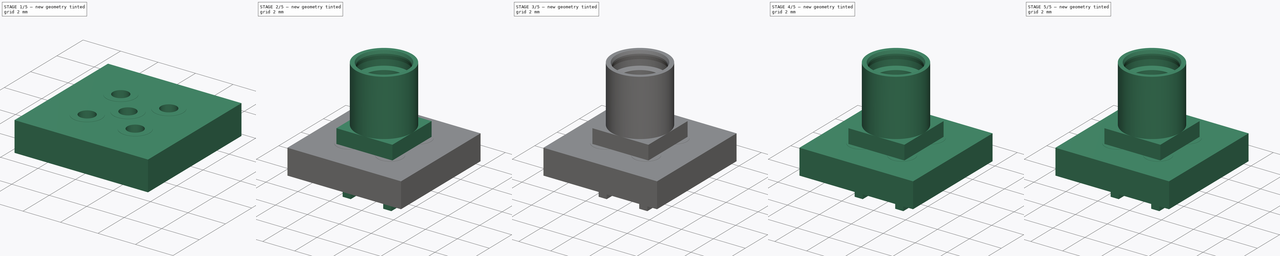
[diagram: build sequence overview — one tinted view per stage of 5, left to right]
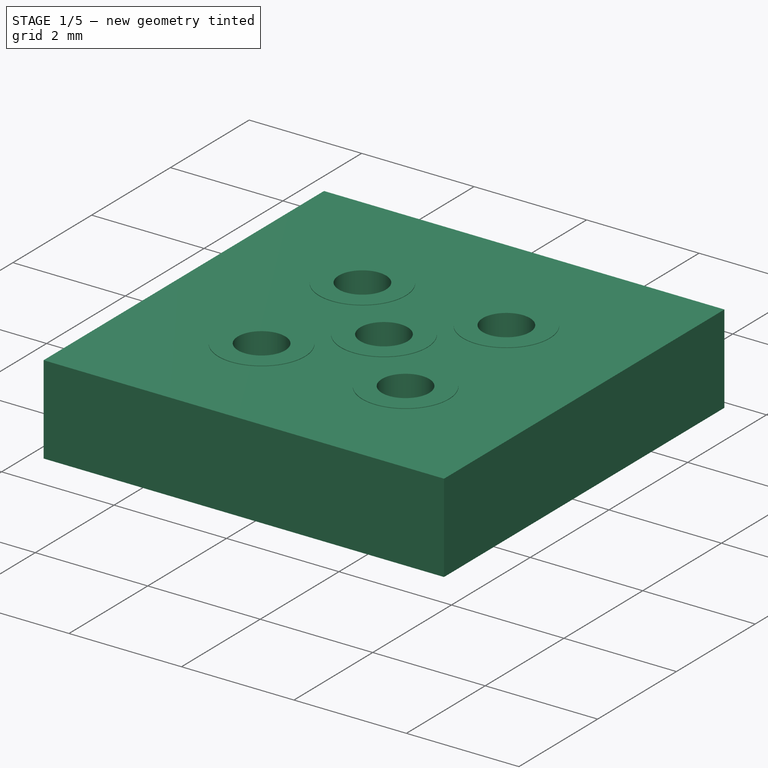
[diagram: stage 1 of 5 — iso view after this stage's code; geometry added in this stage tinted green]
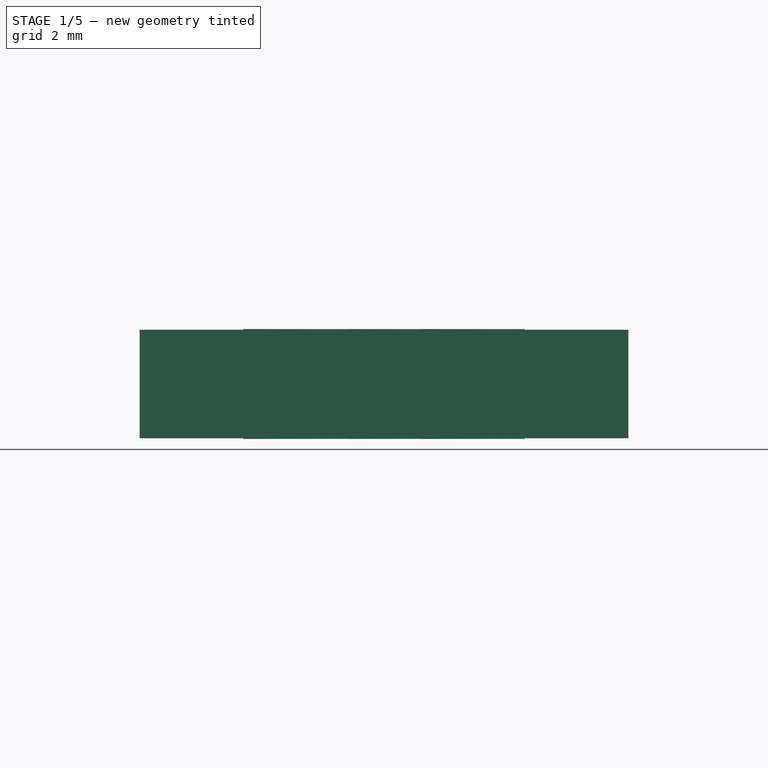
[diagram: stage 1 of 5 — front view after this stage's code; geometry added in this stage tinted green]
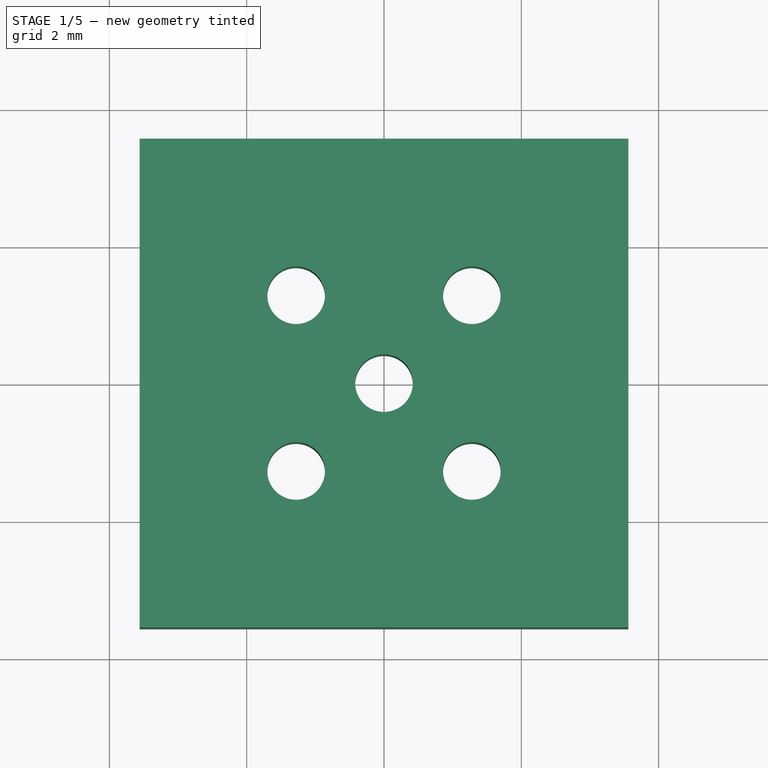
[diagram: stage 1 of 5 — top view after this stage's code; geometry added in this stage tinted green]
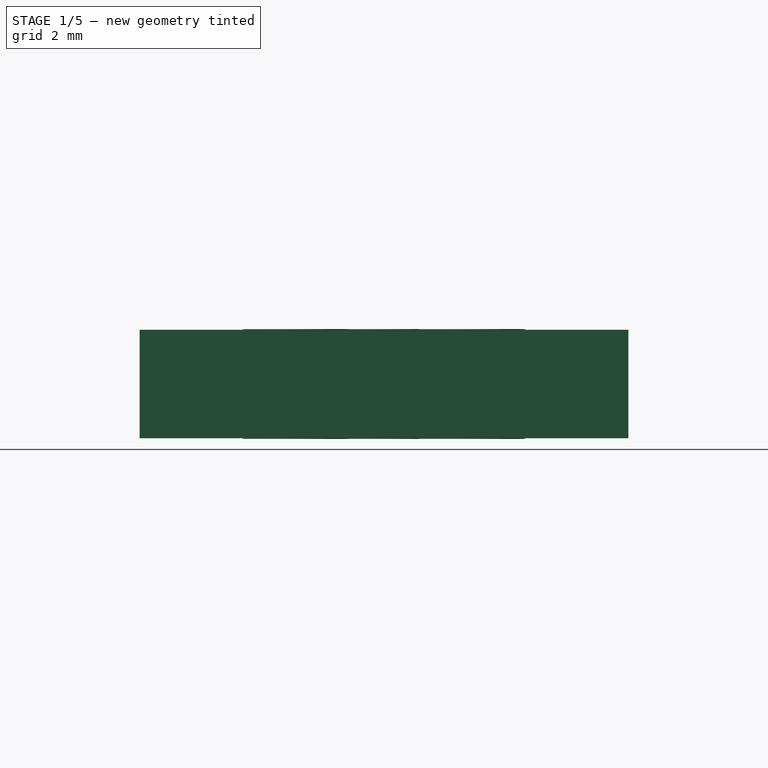
[diagram: stage 1 of 5 — right view after this stage's code; geometry added in this stage tinted green]
FCSTD DOCUMENT  (FreeCAD 0.17R13519 (Git))
Label: MMCX_Molex_73415-1471_Vertical
License: All rights reserved
LicenseURL: http://en.wikipedia.org/wiki/All_rights_reserved
objects: Part::FeaturePython×14, Sketcher::SketchObject×7, PartDesign::Pad×5, Part::Feature×3, App::DocumentObjectGroup×2, PartDesign::Body×2, PartDesign::Revolution×1, PartDesign::Pocket×1, PartDesign::PolarPattern×1, PartDesign::Chamfer×1, App::Part×1, Part::Compound×1, Part::MultiFuse×1
note: 44 computed .brp shape members not serialized (recipe doc carries the construction recipe); baked Part::Feature solids carry a one-line shape summary decoded from their .brp

FEATURE [Part::Feature] Shape  label="MMCX_Molex_73415-1471_Vertical"
  shape: bbox 3.51 x 3.51 x 7.44 mm, 58 faces (baked)
FEATURE [Part::FeaturePython] FCrtYd_lines001  label="FCrtYd001"  # a2plus imported part (geometry in sourceFile) (typed FeaturePython)
  fixedPosition = true
FEATURE [Part::FeaturePython] FFab_lines001  label="FFab001"  # a2plus imported part (geometry in sourceFile) (typed FeaturePython)
  fixedPosition = true
FEATURE [Part::FeaturePython] Filk_lines001  label="FrontSilk001"  # a2plus imported part (geometry in sourceFile) (typed FeaturePython)
  fixedPosition = true
FEATURE [Part::FeaturePython] TopPads001  # a2plus imported part (geometry in sourceFile) (typed FeaturePython)
  fixedPosition = true
FEATURE [Part::FeaturePython] BotPads001  # a2plus imported part (geometry in sourceFile) (typed FeaturePython)
  fixedPosition = true
FEATURE [Part::FeaturePython] THPs001  label="PTHs001"  # a2plus imported part (geometry in sourceFile) (typed FeaturePython)
  fixedPosition = true
FEATURE [Part::FeaturePython] newPCB001  label="Pcb001"  # a2plus imported part (geometry in sourceFile) (typed FeaturePython)
  fixedPosition = true
FEATURE [App::DocumentObjectGroup] MMCX_Molex_73415_1471_Vertical_fp
  Group = -> [FCrtYd_lines001,FFab_lines001,Filk_lines001,TopPads001,BotPads001,THPs001,newPCB001]
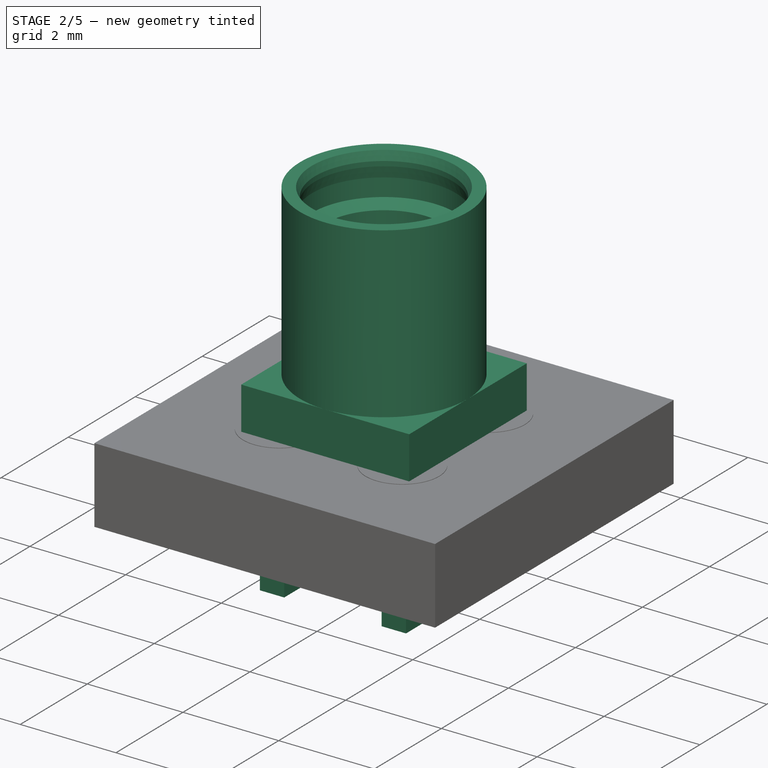
[diagram: stage 2 of 5 — iso view after this stage's code; geometry added in this stage tinted green]
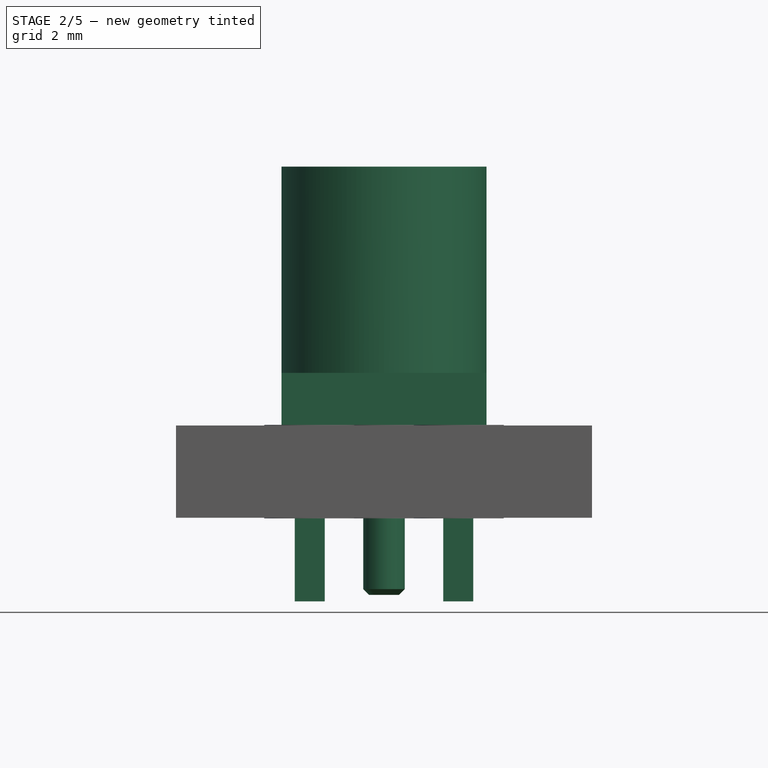
[diagram: stage 2 of 5 — front view after this stage's code; geometry added in this stage tinted green]
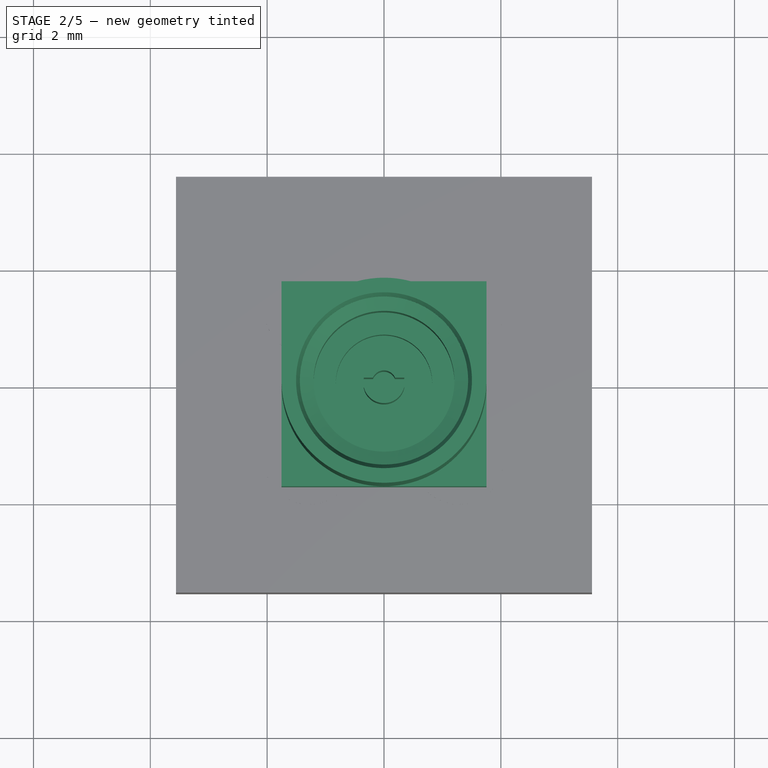
[diagram: stage 2 of 5 — top view after this stage's code; geometry added in this stage tinted green]
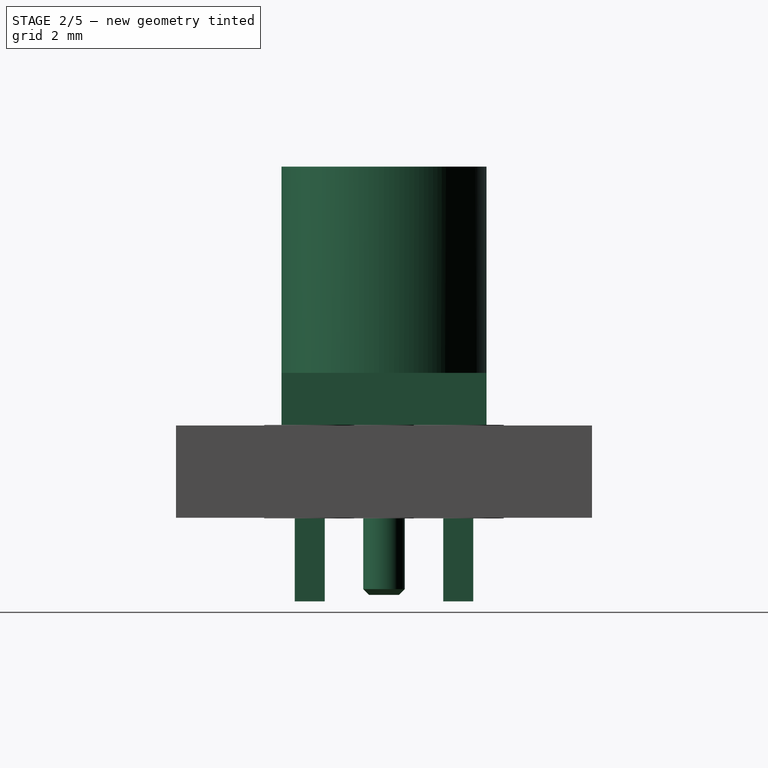
[diagram: stage 2 of 5 — right view after this stage's code; geometry added in this stage tinted green]
FEATURE [App::DocumentObjectGroup] MMCX_fp
  Group = -> [FCrtYd_lines,FFab_lines,Filk_lines,TopPads,BotPads,THPs,newPCB]
FEATURE [Sketcher::SketchObject] Sketch
  MapMode = 5
  Support = -> [XY_Plane]
  sketch-geometry (4):
    g0: LineSegment StartX=-1.755 StartY=1.755 StartZ=0 EndX=1.755 EndY=1.755 EndZ=0
    g1: LineSegment StartX=1.755 StartY=1.755 StartZ=0 EndX=1.755 EndY=-1.755 EndZ=0
    g2: LineSegment StartX=1.755 StartY=-1.755 StartZ=0 EndX=-1.755 EndY=-1.755 EndZ=0
    g3: LineSegment StartX=-1.755 StartY=-1.755 StartZ=0 EndX=-1.755 EndY=1.755 EndZ=0
  constraints (12):
    c: Coincident(g0,g1)
    c: Coincident(g1,g2)
    c: Coincident(g2,g3)
    c: Coincident(g3,g0)
    c: Horizontal(g0)
    c: Horizontal(g2)
    c: Vertical(g1)
    c: Vertical(g3)
    c: DistanceX(g0,g0) = 3.51
    c: DistanceY(g1,g1) = 3.51
    c: Symmetric(g0,g0,g-2)
    c: Symmetric(g1,g0,g-1)
FEATURE [PartDesign::Pad] Pad
  Length = 0.89
  Length2 = 100
  Profile = -> Sketch
  Type = 0
FEATURE [Sketcher::SketchObject] Sketch001
  MapMode = 5
  Placement = pos=(0,0,0) rot=(1,0,0;1.5708rad)
  Support = -> [XZ_Plane]
  sketch-geometry (11):
    g0: LineSegment StartX=1.755 StartY=0.89 StartZ=0 EndX=0.825 EndY=0.89 EndZ=0
    g1: LineSegment StartX=1.755 StartY=0.89 StartZ=0 EndX=1.755 EndY=4.42 EndZ=0
    g2: LineSegment StartX=1.755 StartY=4.42 StartZ=0 EndX=1.505 EndY=4.42 EndZ=0
    g3: LineSegment StartX=1.505 StartY=4.42 StartZ=0 EndX=1.44 EndY=4.24 EndZ=0
    g4: LineSegment StartX=1.44 StartY=4.24 StartZ=0 EndX=1.44 EndY=4.14 EndZ=0
    g5: LineSegment StartX=1.44 StartY=4.14 StartZ=0 EndX=1.505 EndY=3.9 EndZ=0
    g6: LineSegment StartX=1.505 StartY=3.9 StartZ=0 EndX=1.505 EndY=3.53 EndZ=0
    g7: LineSegment StartX=1.505 StartY=3.53 StartZ=0 EndX=1.205 EndY=3.42 EndZ=0
    g8: LineSegment StartX=1.205 StartY=3.42 StartZ=0 EndX=1.205 EndY=1.82 EndZ=0
    g9: LineSegment StartX=1.205 StartY=1.82 StartZ=0 EndX=0.825 EndY=1.82 EndZ=0
    g10: LineSegment StartX=0.825 StartY=1.82 StartZ=0 EndX=0.825 EndY=0.89 EndZ=0
  constraints (33):
    c: Horizontal(g0)
    c: Coincident(g1,g0)
    c: Vertical(g1)
    c: DistanceX(g-1,g0) = 1.755
    c: DistanceY(g-1,g0) = 0.89
    c: DistanceY(g1,g1) = 3.53
    c: Coincident(g2,g1)
    c: Horizontal(g2)
    c: DistanceX(g2,g2) = 0.25
    c: Coincident(g3,g2)
    c: DistanceX(g3,g2) = 0.065
    c: DistanceY(g3,g2) = 0.18
    c: Coincident(g4,g3)
    c: Vertical(g4)
    c: DistanceY(g4,g4) = 0.1
    c: Coincident(g5,g4)
    c: DistanceX(g4,g5) = 0.065
    c: DistanceY(g5,g4) = 0.24
    c: Coincident(g6,g5)
    c: Vertical(g6)
    c: DistanceY(g6,g6) = 0.37
    c: Coincident(g7,g6)
    c: DistanceX(g7,g6) = 0.3
    c: DistanceY(g7,g6) = 0.11
    c: Coincident(g8,g7)
    c: Vertical(g8)
    c: DistanceY(g8,g8) = 1.6
    c: Coincident(g9,g8)
    c: Horizontal(g9)
    c: DistanceX(g9,g9) = 0.38
    c: Coincident(g10,g9)
    c: Vertical(g10)
    c: Coincident(g10,g0)
FEATURE [PartDesign::Revolution] Revolution
  Angle = 360
  Axis = (0,0,1)
  Base = (0,0,0)
  BaseFeature = -> Pad
  Profile = -> Sketch001
  ReferenceAxis = -> Sketch001 [V_Axis]
  Reversed = true
FEATURE [PartDesign::Body] Body  label="Shell"
  Group = -> [Sketch,Pad,Sketch001,Revolution,Sketch002,Sketch003,Pad002,Sketch004,Pad003,Sketch005,Pocket,Pad005,PolarPattern,Chamfer]
  Origin = -> Origin
  Tip = -> Chamfer
FEATURE [App::Part] Part  label="MMCX_Molex_73415-1471_Vertical_Source"
  Group = -> [Body,Body001]
  License = CC BY 3.0
  LicenseURL = http://creativecommons.org/licenses/by/3.0/
  Origin = -> Origin002
FEATURE [Part::Feature] Chamfer_cp
  shape: bbox 3.51 x 3.51 x 7.44 mm, 56 faces (baked)
FEATURE [Part::Feature] Pad004_cp
  shape: bbox 2.54 x 2.54 x 0.1 mm, 4 faces (baked)
FEATURE [Part::Compound] MMCX_Molex_73415_1471_Vertical_cp
  Links = -> [Chamfer_cp,Pad004_cp]
FEATURE [Part::MultiFuse] MMCX_Molex_73415_1471_Vertical_mp_cp  label="MMCX_Molex_73415-1471_Vertical_fd"
  Shapes = -> [MMCX_Molex_73415_1471_Vertical_cp]
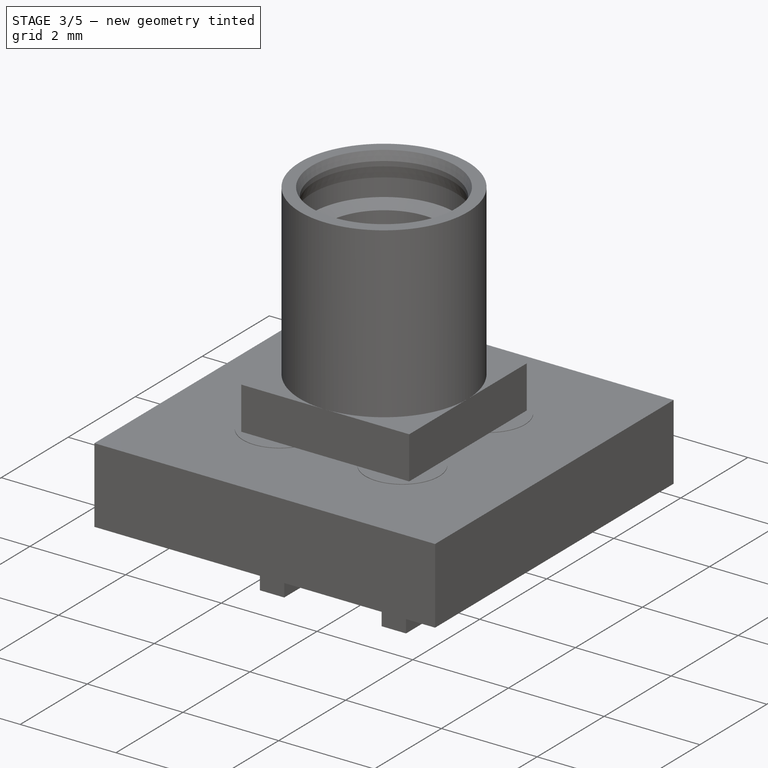
[diagram: stage 3 of 5 — iso view after this stage's code; geometry added in this stage tinted green]
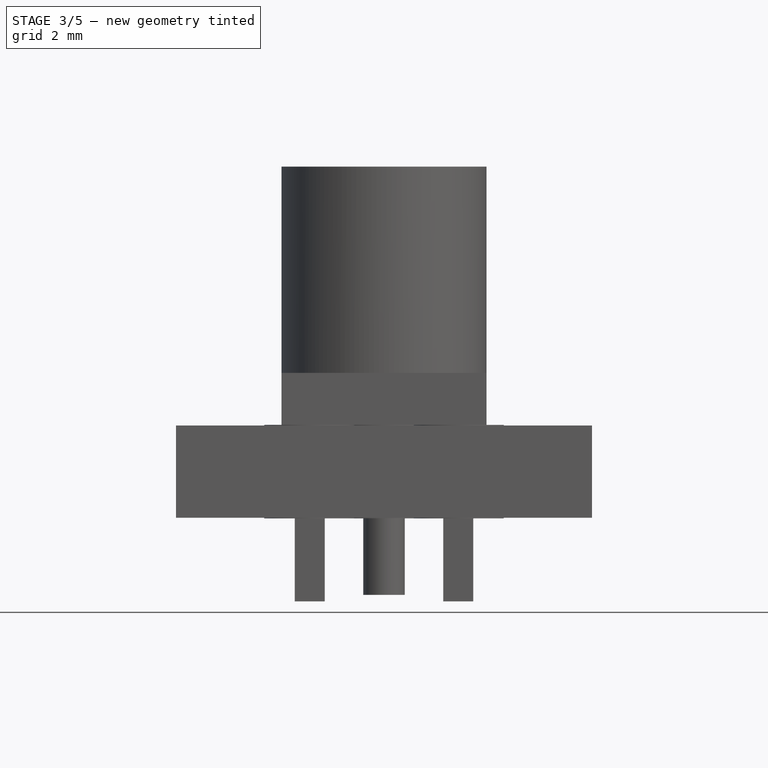
[diagram: stage 3 of 5 — front view after this stage's code; geometry added in this stage tinted green]
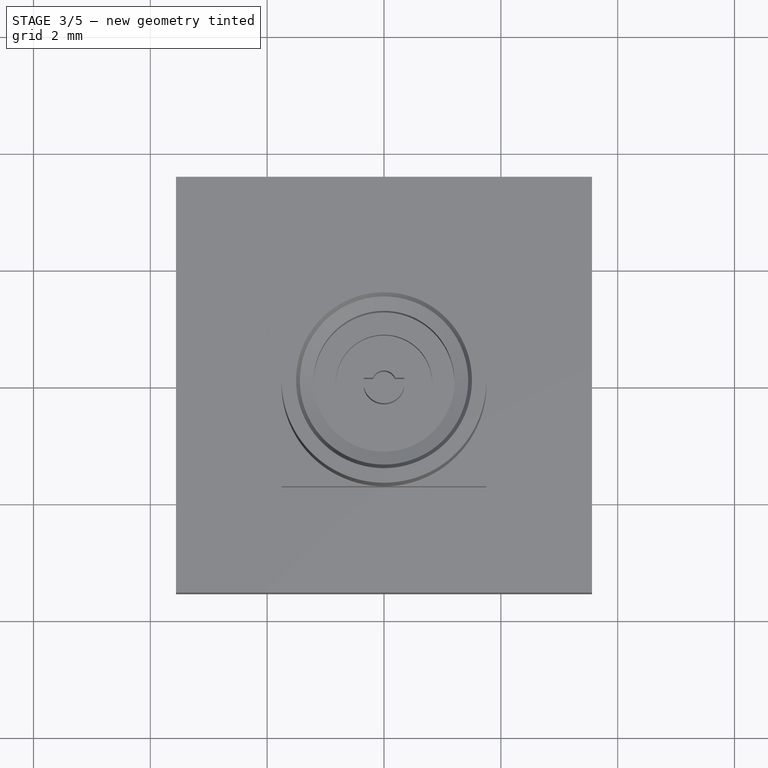
[diagram: stage 3 of 5 — top view after this stage's code; geometry added in this stage tinted green]
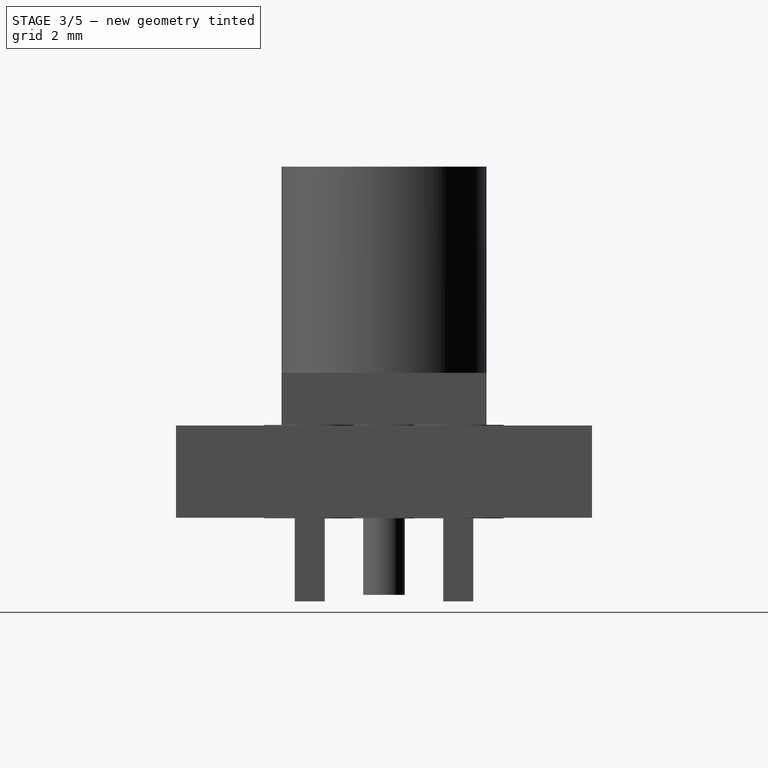
[diagram: stage 3 of 5 — right view after this stage's code; geometry added in this stage tinted green]
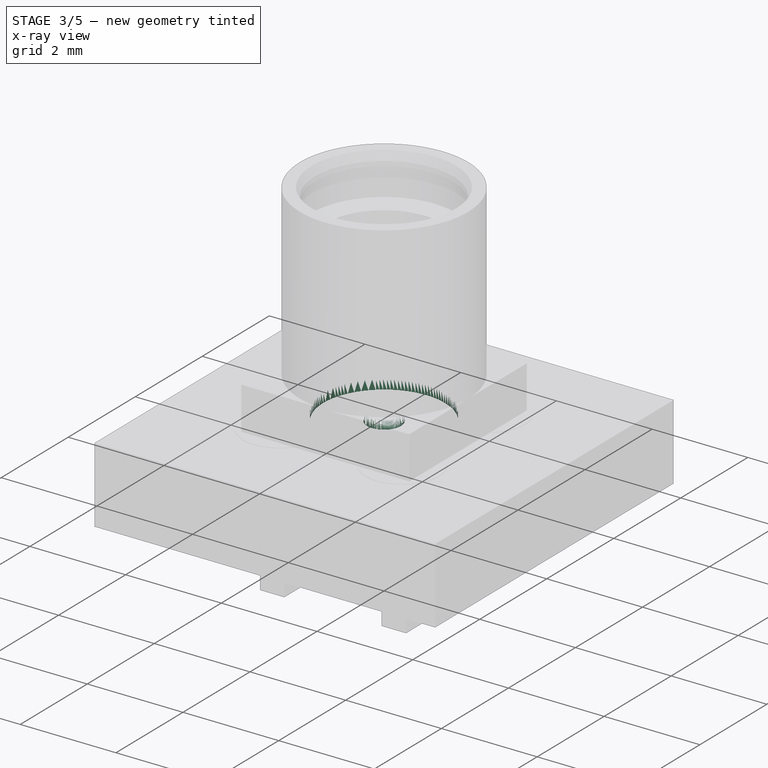
[diagram: stage 3 of 5 — x-ray composite at the iso view; earlier geometry ghosted, this stage's added geometry solid]
FEATURE [Sketcher::SketchObject] Sketch002
  MapMode = 5
  Placement = pos=(0,0,0) rot=(1,0,0;3.14159rad)
  Support = -> [Revolution]
  sketch-geometry (6):
    g0: LineSegment StartX=-1.525 StartY=1.528 StartZ=0 EndX=-1.015 EndY=1.528 EndZ=0
    g1: LineSegment StartX=-1.015 StartY=1.528 StartZ=0 EndX=-1.015 EndY=1.018 EndZ=0
    g2: LineSegment StartX=-1.015 StartY=1.018 StartZ=0 EndX=-1.525 EndY=1.018 EndZ=0
    g3: LineSegment StartX=-1.525 StartY=1.018 StartZ=0 EndX=-1.525 EndY=1.528 EndZ=0
    g4: GeomPoint X=-1.27 Y=1.528 Z=0
    g5: GeomPoint X=-1.525 Y=1.273 Z=0
  constraints (16):
    c: Coincident(g0,g1)
    c: Coincident(g1,g2)
    c: Coincident(g2,g3)
    c: Coincident(g3,g0)
    c: Horizontal(g0)
    c: Horizontal(g2)
    c: Vertical(g1)
    c: Vertical(g3)
    c: DistanceX(g0,g0) = 0.51
    c: DistanceY(g1,g1) = 0.51
    c: PointOnObject(g4,g0)
    c: PointOnObject(g5,g3)
    c: Symmetric(g0,g0,g4)
    c: Symmetric(g0,g2,g5)
    c: DistanceX(g4,g-1) = 1.27
    c: DistanceY(g5) = 1.273
FEATURE [Sketcher::SketchObject] Sketch003
  MapMode = 5
  Placement = pos=(0,0,0) rot=(1,0,0;3.14159rad)
  sketch-geometry (1):
    g0: Circle CenterX=0 CenterY=0 CenterZ=0 NormalX=0 NormalY=0 NormalZ=1 AngleXU=0 Radius=0.355
  constraints (2):
    c: Coincident(g0,g-1)
    c: Radius(g0) = 0.355
FEATURE [PartDesign::Pad] Pad002
  BaseFeature = -> Revolution
  Length = 2.91
  Length2 = 100
  Profile = -> Sketch003
  Type = 0
FEATURE [Sketcher::SketchObject] Sketch004
  MapMode = 5
  Placement = pos=(0,0,0.89) rot=(0,0,1;0rad)
  sketch-geometry (12):
    g0: ArcOfCircle CenterX=0 CenterY=0 CenterZ=0 NormalX=0 NormalY=0 NormalZ=1 AngleXU=0 Radius=0.205 StartAngle=0.400896 EndAngle=2.7407
    g1: ArcOfCircle CenterX=0 CenterY=0 CenterZ=0 NormalX=0 NormalY=0 NormalZ=1 AngleXU=0 Radius=0.355 StartAngle=0.227304 EndAngle=2.91429
    g2: LineSegment [constr] StartX=0.345868 StartY=0.08 StartZ=0 EndX=0.345868 EndY=0 EndZ=0
    g3: LineSegment [constr] StartX=-0.345868 StartY=0.08 StartZ=0 EndX=-0.345868 EndY=0 EndZ=0
    g4: LineSegment StartX=-0.345868 StartY=0.08 StartZ=0 EndX=-0.188746 EndY=0.08 EndZ=0
    g5: LineSegment StartX=0.188746 StartY=0.08 StartZ=0 EndX=0.345868 EndY=0.08 EndZ=0
    g6: ArcOfCircle CenterX=0 CenterY=0 CenterZ=0 NormalX=0 NormalY=0 NormalZ=1 AngleXU=0 Radius=0.205 StartAngle=3.54249 EndAngle=5.88229
    g7: ArcOfCircle CenterX=0 CenterY=0 CenterZ=0 NormalX=0 NormalY=0 NormalZ=1 AngleXU=0 Radius=0.355 StartAngle=3.3689 EndAngle=6.05588
    g8: LineSegment StartX=-0.345868 StartY=-0.08 StartZ=0 EndX=-0.188746 EndY=-0.08 EndZ=0
    g9: LineSegment StartX=0.188746 StartY=-0.08 StartZ=0 EndX=0.345868 EndY=-0.08 EndZ=0
    g10: LineSegment [constr] StartX=0.345868 StartY=-0.08 StartZ=0 EndX=0.345868 EndY=0 EndZ=0
    g11: LineSegment [constr] StartX=-0.345868 StartY=-0.08 StartZ=0 EndX=-0.345868 EndY=0 EndZ=0
  constraints (35):
    c: Coincident(g0,g-1)
    c: Coincident(g1,g-1)
    c: Radius(g1) = 0.355
    c: Radius(g0) = 0.205
    c: Coincident(g2,g1)
    c: PointOnObject(g2,g-1)
    c: Vertical(g2)
    c: Coincident(g3,g1)
    c: PointOnObject(g3,g-1)
    c: Vertical(g3)
    c: DistanceY(g2,g2) = 0.08
    c: DistanceY(g3,g3) = 0.08
    c: Coincident(g4,g1)
    c: Coincident(g4,g0)
    c: Horizontal(g4)
    c: Coincident(g5,g0)
    c: Coincident(g5,g1)
    c: Horizontal(g5)
    c: Coincident(g6,g-1)
    c: Coincident(g7,g-1)
    c: Radius(g6) = 0.205
    c: Radius(g7) = 0.355
    c: Coincident(g8,g7)
    c: Coincident(g8,g6)
    c: Coincident(g9,g6)
    c: Coincident(g9,g7)
    c: Horizontal(g8)
    c: Horizontal(g9)
    c: Coincident(g10,g7)
    c: PointOnObject(g10,g-1)
    c: Vertical(g10)
    c: Coincident(g11,g7)
    c: Coincident(g11,g3)
    c: Vertical(g11)
    c: DistanceY(g10,g10) = 0.08
FEATURE [PartDesign::Pad] Pad003
  BaseFeature = -> Pad002
  Length = 1.46
  Length2 = 100
  Profile = -> Sketch004
  Type = 0
FEATURE [Sketcher::SketchObject] Sketch005
  MapMode = 5
  Placement = pos=(0,0,0) rot=(1,0,0;3.14159rad)
  Support = -> [Pad003]
  sketch-geometry (2):
    g0: Circle CenterX=0 CenterY=0 CenterZ=0 NormalX=0 NormalY=0 NormalZ=1 AngleXU=0 Radius=1.27
    g1: Circle CenterX=0 CenterY=0 CenterZ=0 NormalX=0 NormalY=0 NormalZ=1 AngleXU=0 Radius=0.355
  constraints (4):
    c: Coincident(g0,g-1)
    c: Radius(g0) = 1.27
    c: Coincident(g1,g-1)
    c: Radius(g1) = 0.355
FEATURE [PartDesign::Pocket] Pocket
  BaseFeature = -> Pad003
  Length = 0.2
  Length2 = 100
  Profile = -> Sketch005
  Type = 0
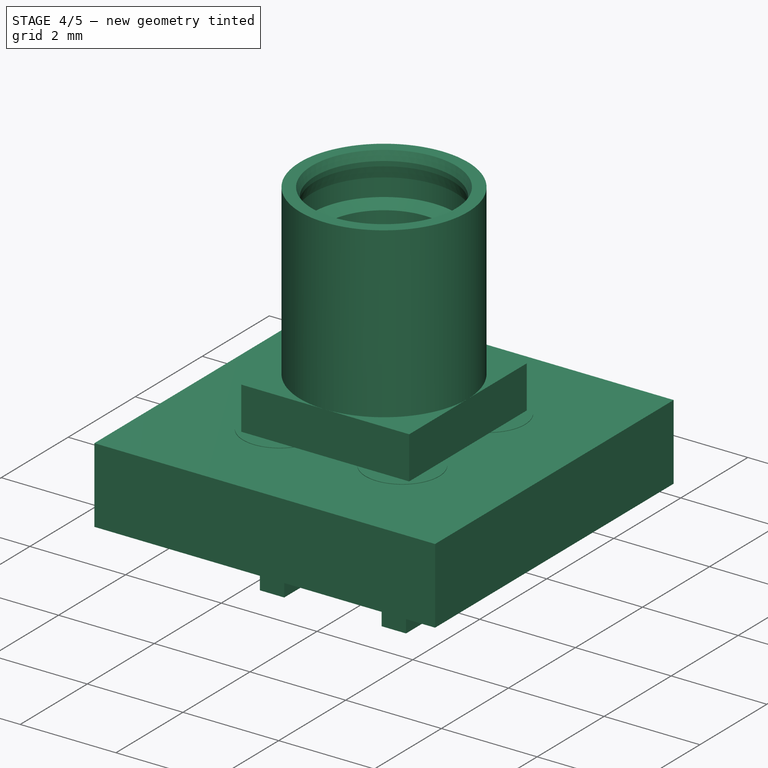
[diagram: stage 4 of 5 — iso view after this stage's code; geometry added in this stage tinted green]
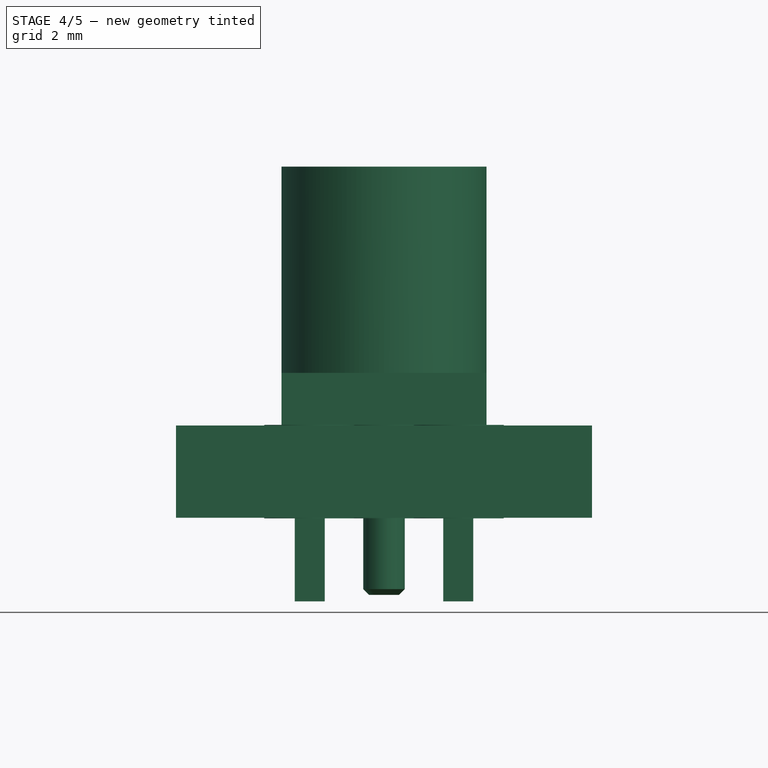
[diagram: stage 4 of 5 — front view after this stage's code; geometry added in this stage tinted green]
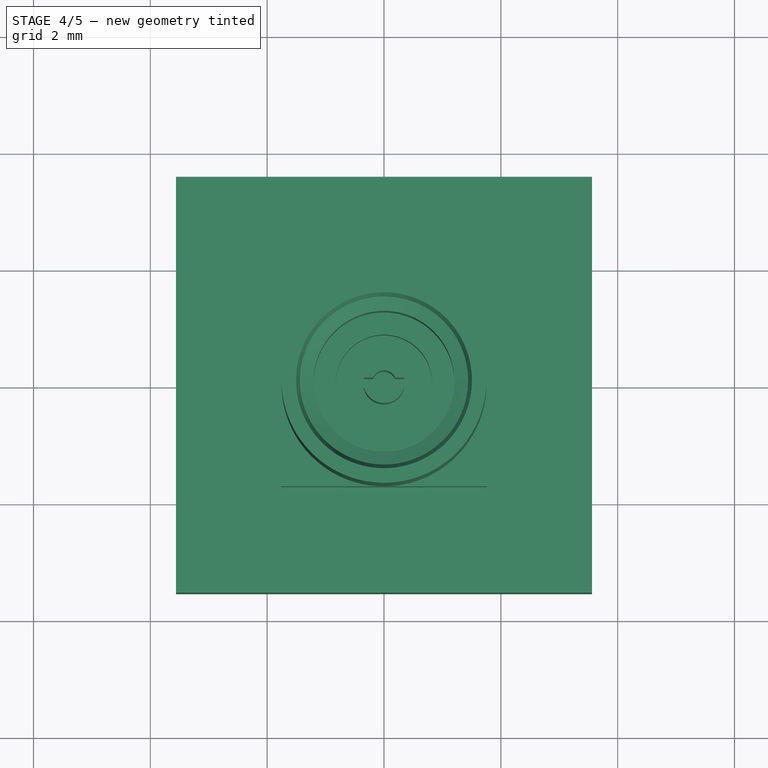
[diagram: stage 4 of 5 — top view after this stage's code; geometry added in this stage tinted green]
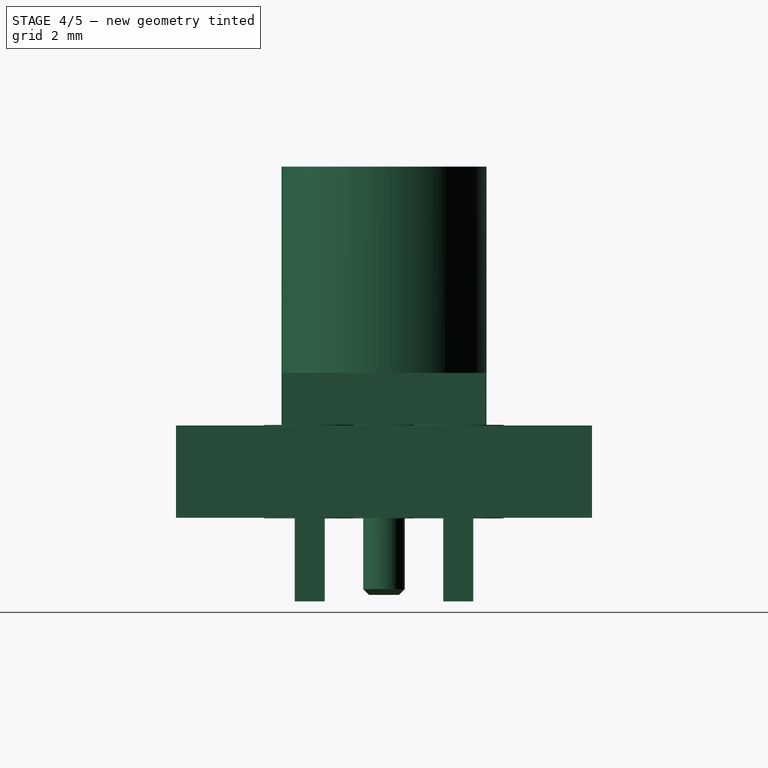
[diagram: stage 4 of 5 — right view after this stage's code; geometry added in this stage tinted green]
FEATURE [Sketcher::SketchObject] Sketch006
  MapMode = 5
  Support = -> [XY_Plane001]
  sketch-geometry (2):
    g0: Circle CenterX=0 CenterY=0 CenterZ=0 NormalX=0 NormalY=0 NormalZ=1 AngleXU=0 Radius=1.27
    g1: Circle CenterX=0 CenterY=0 CenterZ=0 NormalX=0 NormalY=0 NormalZ=1 AngleXU=0 Radius=0.355
  constraints (4):
    c: Radius(g0) = 1.27
    c: Coincident(g0,g-1)
    c: Coincident(g1,g-1)
    c: Radius(g1) = 0.355
FEATURE [PartDesign::Pad] Pad004
  Length = 0.1
  Length2 = 100
  Profile = -> Sketch006
  Type = 0
FEATURE [PartDesign::Body] Body001  label="Plastic"
  Group = -> [Sketch006,Pad004]
  Origin = -> Origin001
  Tip = -> Pad004
FEATURE [PartDesign::Pad] Pad005
  BaseFeature = -> Pocket
  Length = 3.02
  Length2 = 100
  Profile = -> Sketch002
  Type = 0
FEATURE [PartDesign::PolarPattern] PolarPattern
  Angle = 360
  Axis = -> Sketch002 [N_Axis]
  BaseFeature = -> Pad005
  Occurrences = 4
  Originals = -> [Pad005]
FEATURE [PartDesign::Chamfer] Chamfer
  Base = -> PolarPattern [Edge81]
  BaseFeature = -> PolarPattern
  Size = 0.1
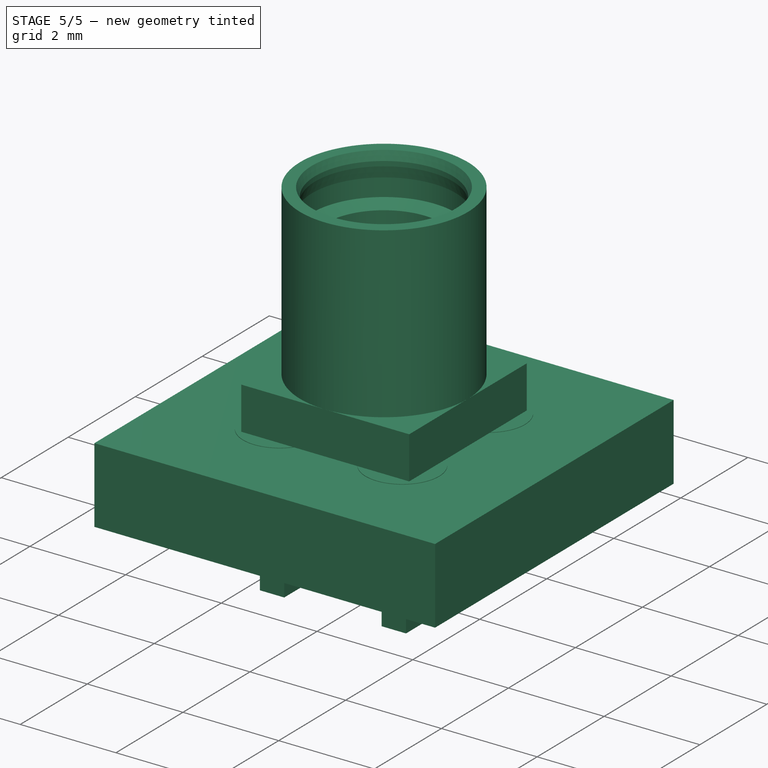
[diagram: stage 5 of 5 — iso view after this stage's code; geometry added in this stage tinted green]
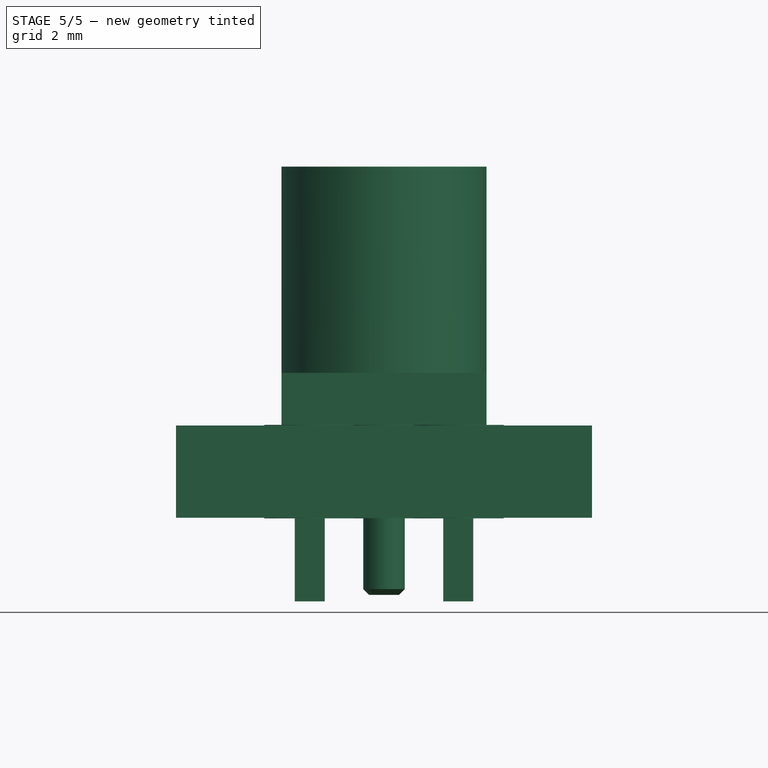
[diagram: stage 5 of 5 — front view after this stage's code; geometry added in this stage tinted green]
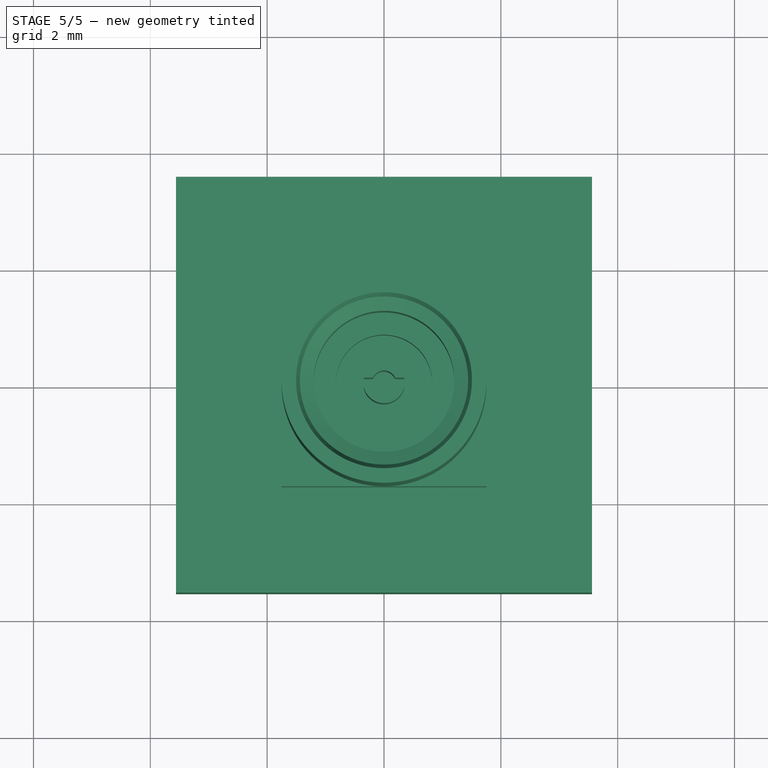
[diagram: stage 5 of 5 — top view after this stage's code; geometry added in this stage tinted green]
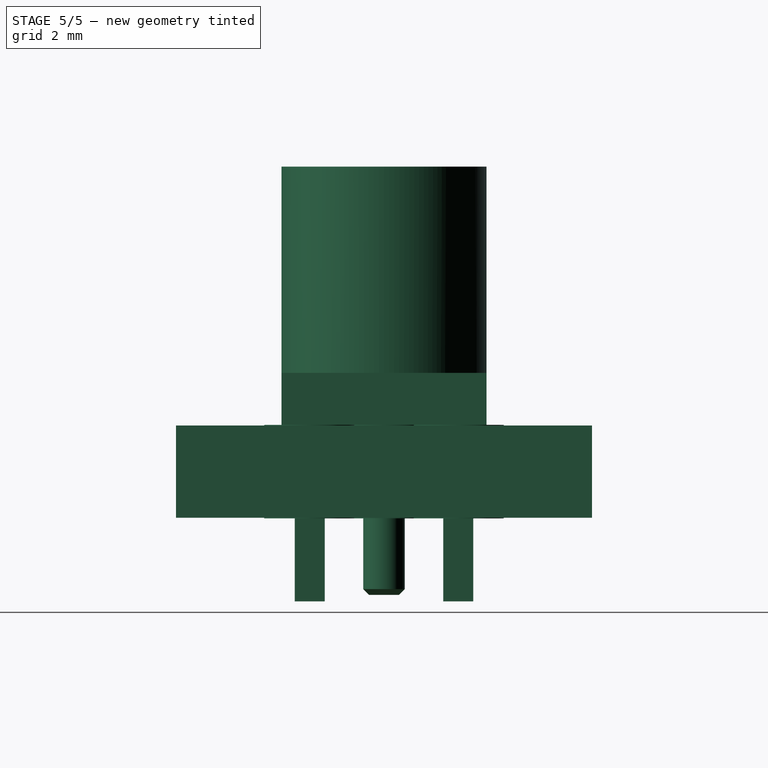
[diagram: stage 5 of 5 — right view after this stage's code; geometry added in this stage tinted green]
FEATURE [Part::FeaturePython] FCrtYd_lines  label="FCrtYd"  # a2plus imported part (geometry in sourceFile) (typed FeaturePython)
  fixedPosition = true
FEATURE [Part::FeaturePython] FFab_lines  label="FFab"  # a2plus imported part (geometry in sourceFile) (typed FeaturePython)
  fixedPosition = true
FEATURE [Part::FeaturePython] Filk_lines  label="FrontSilk"  # a2plus imported part (geometry in sourceFile) (typed FeaturePython)
  fixedPosition = true
FEATURE [Part::FeaturePython] TopPads  # a2plus imported part (geometry in sourceFile) (typed FeaturePython)
  fixedPosition = true
FEATURE [Part::FeaturePython] BotPads  # a2plus imported part (geometry in sourceFile) (typed FeaturePython)
  fixedPosition = true
FEATURE [Part::FeaturePython] THPs  label="PTHs"  # a2plus imported part (geometry in sourceFile) (typed FeaturePython)
  fixedPosition = true
FEATURE [Part::FeaturePython] newPCB  label="Pcb"  # a2plus imported part (geometry in sourceFile) (typed FeaturePython)
  fixedPosition = true
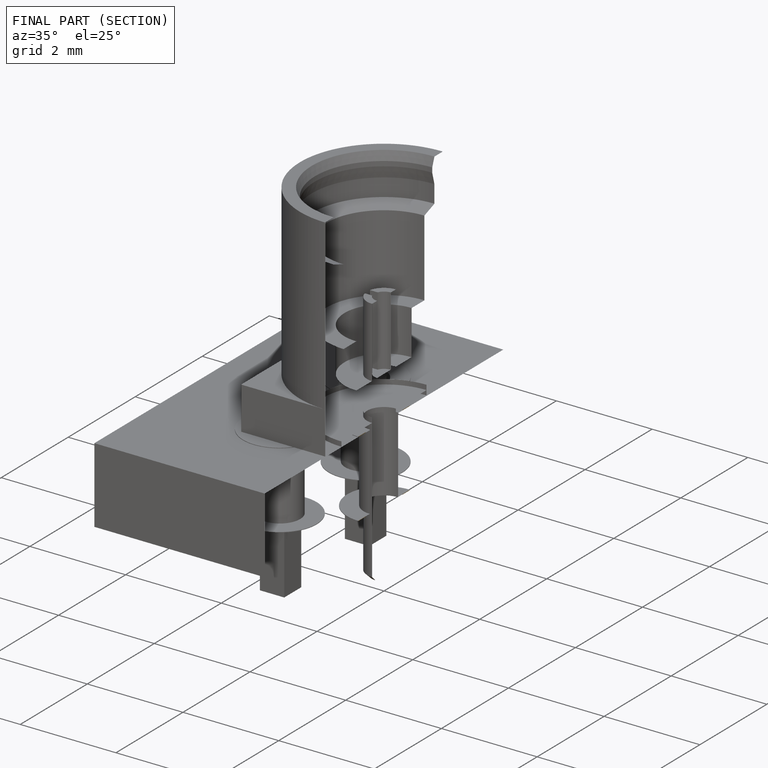
[diagram: finished part — half-section view (interior)]
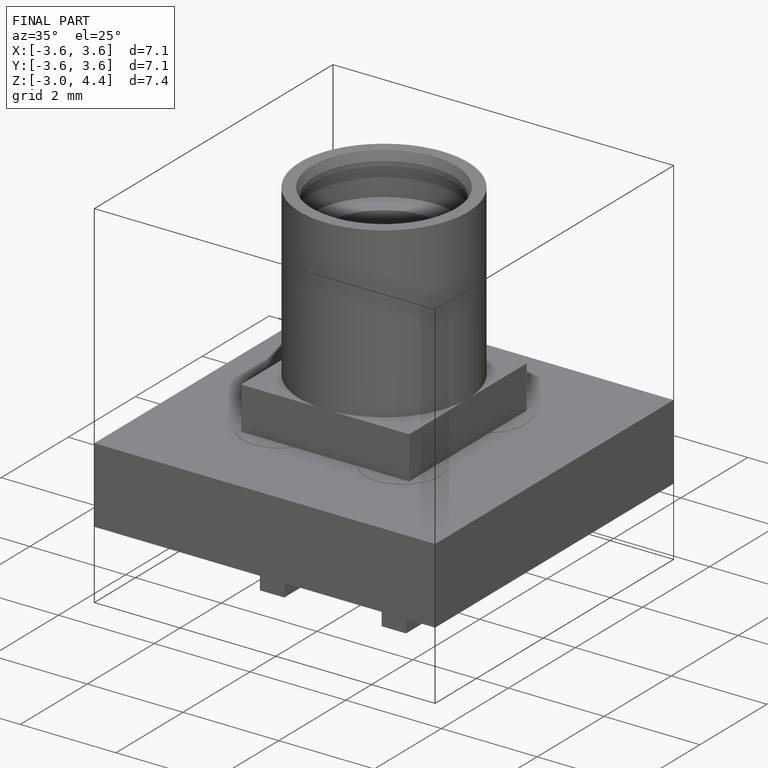
[diagram: finished part — iso view with bounding-box wireframe]
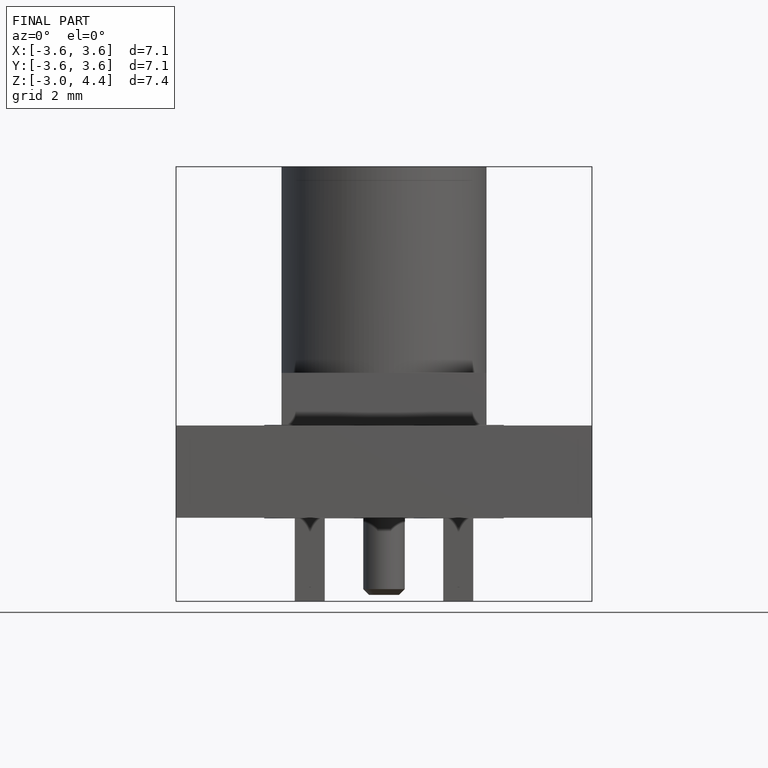
[diagram: finished part — front view with bounding-box wireframe]
